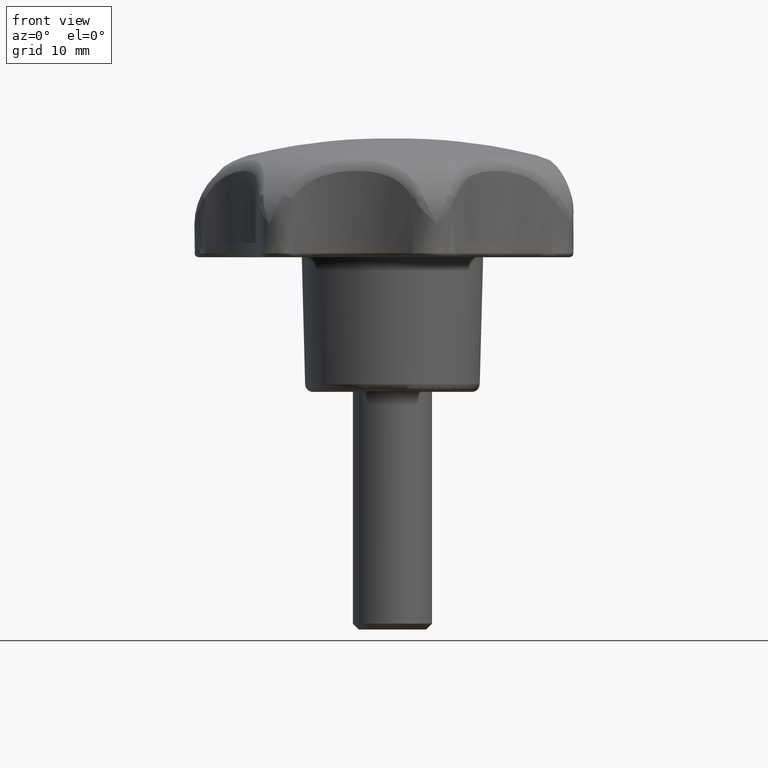
[diagram: clean part render]
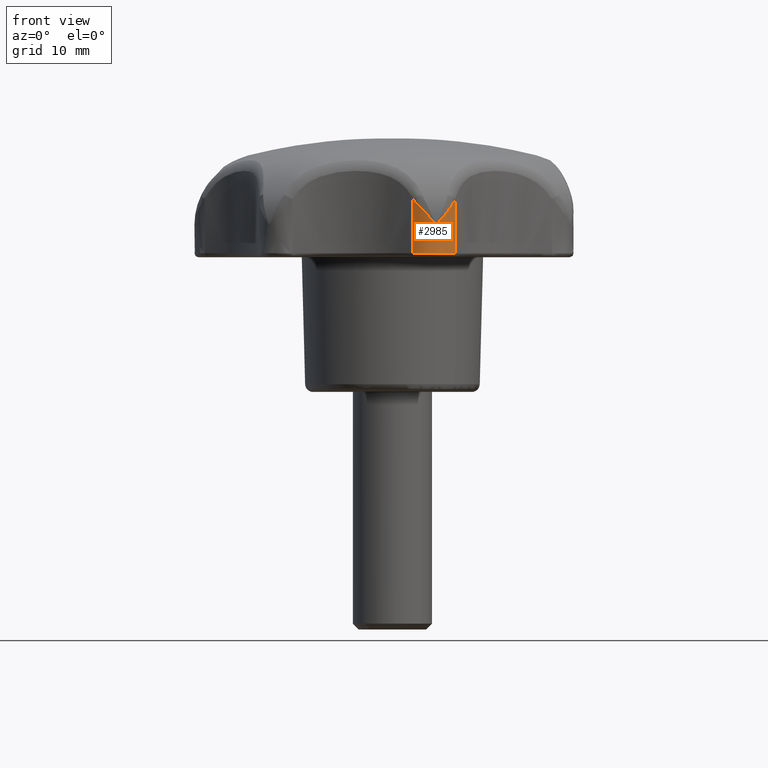
[diagram: same view with one face highlighted and labeled with its STEP entity id]
A machine part, front view. The second image highlights one B-rep face of the part: STEP entity #2985.
In plain terms, the highlighted face is a freeform B-spline surface patch.
Its self-contained STEP definition (entity closure, byte-faithful):
#1508=CARTESIAN_POINT('',(2.601986538722750,-23.697360399521848,17.500000000000000));
#1509=VERTEX_POINT('',#1508);
#1538=CARTESIAN_POINT('',(7.937591416701769,-22.479542615013202,17.500000000000000));
#1539=VERTEX_POINT('',#1538);
#1550=CARTESIAN_POINT('',(2.601986538722750,-23.697360399521848,17.500000000000000));
#1551=CARTESIAN_POINT('',(2.857774990056049,-23.901501534111091,17.500000000000011));
#1552=CARTESIAN_POINT('',(3.341764105493883,-24.186749922136219,17.499999999999950));
#1553=CARTESIAN_POINT('',(4.112721804356155,-24.420618107529020,17.500000000000039));
#1554=CARTESIAN_POINT('',(4.735352847335769,-24.477515174506141,17.500000000000021));
#1555=CARTESIAN_POINT('',(5.356513735688226,-24.429494201333931,17.499999999999901));
#1556=CARTESIAN_POINT('',(5.979591242045736,-24.278090268540598,17.500000000000089));
#1557=CARTESIAN_POINT('',(6.662007352817428,-23.949477032760701,17.499999999999961));
#1558=CARTESIAN_POINT('',(7.382951698350551,-23.374567975989191,17.500000000000071));
#1559=CARTESIAN_POINT('',(7.767430895259555,-22.833503813731809,17.499999999999950));
#1560=CARTESIAN_POINT('',(7.937591416701769,-22.479542615013202,17.500000000000000));
#1561=B_SPLINE_CURVE_WITH_KNOTS('',3,(#1550,#1551,#1552,#1553,#1554,#1555,#1556,#1557,#1558,#1559,#1560),.UNSPECIFIED.,.F.,.U.,(4,1,1,1,1,1,1,1,4),(0.000000098997508,0.981755226179944,1.668987174646949,2.405319939533330,2.847117214482729,3.534308689444759,4.319722064178450,5.105132771399431,6.283236527322941),.UNSPECIFIED.);
#1562=EDGE_CURVE('',#1509,#1539,#1561,.T.);
#2083=CARTESIAN_POINT('',(2.601986538722750,-23.697360399521848,24.301413638337149));
#2084=VERTEX_POINT('',#2083);
#2085=CARTESIAN_POINT('',(2.601986538722750,-23.697360399521848,24.301413638337149));
#2086=CARTESIAN_POINT('',(2.601986538722750,-23.697360399521848,17.500000000000000));
#2087=QUASI_UNIFORM_CURVE('',1,(#2085,#2086),.UNSPECIFIED.,.F.,.U.);
#2088=EDGE_CURVE('',#2084,#1509,#2087,.T.);
#2431=CARTESIAN_POINT('',(7.937591416701769,-22.479542615013202,24.301414718962949));
#2432=VERTEX_POINT('',#2431);
#2433=CARTESIAN_POINT('',(7.937591416701769,-22.479542615013202,24.301414718962949));
#2434=CARTESIAN_POINT('',(7.937591416701769,-22.479542615013202,17.500000000000000));
#2435=QUASI_UNIFORM_CURVE('',1,(#2433,#2434),.UNSPECIFIED.,.F.,.U.);
#2436=EDGE_CURVE('',#2432,#1539,#2435,.T.);
#2914=CARTESIAN_POINT('',(2.531103222087526,-23.639299288155009,24.471450086937018));
#2915=CARTESIAN_POINT('',(2.531103222087526,-23.639299288155009,17.325713747826580));
#2916=CARTESIAN_POINT('',(6.150684546756382,-26.684184828689332,24.471450086937018));
#2917=CARTESIAN_POINT('',(6.150684546756382,-26.684184828689332,17.325713747826576));
#2918=CARTESIAN_POINT('',(8.004259908256415,-22.332523617141881,24.471450086937018));
#2919=CARTESIAN_POINT('',(8.004259908256415,-22.332523617141881,17.325713747826580));
#2927=(BOUNDED_SURFACE()B_SPLINE_SURFACE(1,2,((#2914,#2916,#2918),(#2915,#2917,#2919)),.UNSPECIFIED.,.F.,.F.,.U.)B_SPLINE_SURFACE_WITH_KNOTS((2,2),(3,3),(0.0,7.145736339110446),(0.0,7.056580920545699),.UNSPECIFIED.)GEOMETRIC_REPRESENTATION_ITEM()RATIONAL_B_SPLINE_SURFACE(((1.0,0.594822786751341,1.0),(1.0,0.594822786751341,1.0)))REPRESENTATION_ITEM('')SURFACE());
#2928=ORIENTED_EDGE('',*,*,#2088,.T.);
#2929=ORIENTED_EDGE('',*,*,#1562,.T.);
#2930=ORIENTED_EDGE('',*,*,#2436,.F.);
#2931=CARTESIAN_POINT('',(5.563023274532561,-24.373197756430201,21.138975563360098));
#2932=VERTEX_POINT('',#2931);
#2933=CARTESIAN_POINT('',(7.937591416701769,-22.479542615013202,24.301414718962949));
#2934=CARTESIAN_POINT('',(7.817656198841475,-22.728590472598398,24.050995094393961));
#2935=CARTESIAN_POINT('',(7.672269123301348,-22.955769129758110,23.797851523839331));
#2936=CARTESIAN_POINT('',(7.422271289433271,-23.264890434825030,23.411183915974679));
#2937=CARTESIAN_POINT('',(7.333570006494174,-23.362623133852289,23.281138205324591));
#2938=CARTESIAN_POINT('',(7.192896803608067,-23.501129132710581,23.083960244805098));
#2939=CARTESIAN_POINT('',(7.144713147264485,-23.545956631301650,23.017859373523969));
#2940=CARTESIAN_POINT('',(7.046441863514215,-23.632380956106800,22.885662733605241));
#2941=CARTESIAN_POINT('',(6.996287415273827,-23.674046690227669,22.819471675976779));
#2942=CARTESIAN_POINT('',(6.842904597174636,-23.794434235869399,22.620529958541820));
#2943=CARTESIAN_POINT('',(6.736762062879356,-23.868554294966039,22.487411148588709));
#2944=CARTESIAN_POINT('',(6.517286220161764,-24.004479776260791,22.219711616773701));
#2945=CARTESIAN_POINT('',(6.403824152284350,-24.066321338924631,22.084993090257790));
#2946=CARTESIAN_POINT('',(6.171738424526755,-24.176731501865319,21.815417125150379));
#2947=CARTESIAN_POINT('',(6.052916834518045,-24.225420251638610,21.680319655766649));
#2948=CARTESIAN_POINT('',(5.871397899294351,-24.288426947369540,21.477408504241129));
#2949=CARTESIAN_POINT('',(5.810339469436201,-24.307759528050610,21.409722425968450));
#2950=CARTESIAN_POINT('',(5.718054881500073,-24.334218313853022,21.308169673967232));
#2951=CARTESIAN_POINT('',(5.687175261536238,-24.342615189379689,21.274312378640779));
#2952=CARTESIAN_POINT('',(5.625200111290276,-24.358558363072259,21.206595930610369));
#2953=CARTESIAN_POINT('',(5.593851015484393,-24.366161460716441,21.172641344253659));
#2954=CARTESIAN_POINT('',(5.563023260411490,-24.373197694561750,21.138975563360152));
#2955=B_SPLINE_CURVE_WITH_KNOTS('',3,(#2933,#2934,#2935,#2936,#2937,#2938,#2939,#2940,#2941,#2942,#2943,#2944,#2945,#2946,#2947,#2948,#2949,#2950,#2951,#2952,#2953,#2954),.UNSPECIFIED.,.F.,.U.,(4,2,2,2,2,2,2,2,2,2,4),(0.0,0.250000000000000,0.374999999999999,0.437499999999999,0.499999999999999,0.624999999999999,0.749999999999999,0.875000000000000,0.937500000000000,0.968750000000000,1.0),.UNSPECIFIED.);
#2956=EDGE_CURVE('',#2432,#2932,#2955,.T.);
#2957=ORIENTED_EDGE('',*,*,#2956,.T.);
#2958=CARTESIAN_POINT('',(5.563023274532561,-24.373197756430201,21.138975563360098));
#2959=CARTESIAN_POINT('',(5.532195517917123,-24.380233925536089,21.172641330511890));
#2960=CARTESIAN_POINT('',(5.500652111124317,-24.386985631401920,21.206595902896659));
#2961=CARTESIAN_POINT('',(5.437896972139562,-24.399511333433740,21.274312323190468));
#2962=CARTESIAN_POINT('',(5.406432141110119,-24.405344172953559,21.308169604654651));
#2963=CARTESIAN_POINT('',(5.311806602538271,-24.421546407757759,21.409722315083631));
#2964=CARTESIAN_POINT('',(5.248406792018761,-24.430620612375890,21.477408365641640));
#2965=CARTESIAN_POINT('',(5.057526380872628,-24.452611654010042,21.680319434329640));
#2966=CARTESIAN_POINT('',(4.929346624229144,-24.460299366838729,21.815416848401672));
#2967=CARTESIAN_POINT('',(4.672339540107132,-24.461521492089879,22.084992704855640));
#2968=CARTESIAN_POINT('',(4.543281754151583,-24.455033532259129,22.219711176648460));
#2969=CARTESIAN_POINT('',(4.286565100159629,-24.427795949569710,22.487410601228390));
#2970=CARTESIAN_POINT('',(4.158774543000383,-24.407069631836869,22.620529358775968));
#2971=CARTESIAN_POINT('',(3.968347272891021,-24.365154563105381,22.819470998975529));
#2972=CARTESIAN_POINT('',(3.905081615536590,-24.349376251929570,22.885662031088099));
#2973=CARTESIAN_POINT('',(3.779044185200374,-24.314148978086681,23.017858620361348));
#2974=CARTESIAN_POINT('',(3.716182310960492,-24.294666924100220,23.083959466245851));
#2975=CARTESIAN_POINT('',(3.529344702346168,-24.230913216686730,23.281137349042812));
#2976=CARTESIAN_POINT('',(3.407023020837643,-24.181345194349291,23.411183009933652));
#2977=CARTESIAN_POINT('',(3.047660195807341,-24.011306708137639,23.797850436139669));
#2978=CARTESIAN_POINT('',(2.818101845511286,-23.869707003106790,24.050993979128108));
#2979=CARTESIAN_POINT('',(2.601986202717796,-23.697360594730121,24.301413482708369));
#2980=B_SPLINE_CURVE_WITH_KNOTS('',3,(#2958,#2959,#2960,#2961,#2962,#2963,#2964,#2965,#2966,#2967,#2968,#2969,#2970,#2971,#2972,#2973,#2974,#2975,#2976,#2977,#2978,#2979),.UNSPECIFIED.,.F.,.U.,(4,2,2,2,2,2,2,2,2,2,4),(0.000000036416681,0.031250036416680,0.062500036416679,0.125000036416679,0.250000036416679,0.375000036416679,0.500000036416679,0.562500036416678,0.625000036416678,0.750000036416679,1.0),.UNSPECIFIED.);
#2981=EDGE_CURVE('',#2932,#2084,#2980,.T.);
#2982=ORIENTED_EDGE('',*,*,#2981,.T.);
#2983=EDGE_LOOP('',(#2928,#2929,#2930,#2957,#2982));
#2984=FACE_OUTER_BOUND('',#2983,.T.);
#2985=ADVANCED_FACE('',(#2984),#2927,.T.);